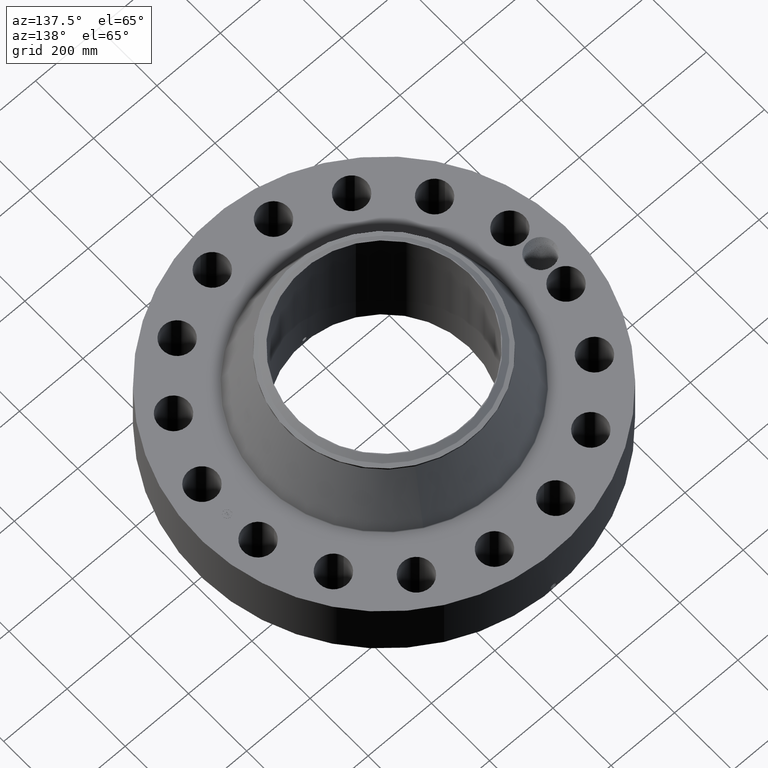
[diagram: clean part render]
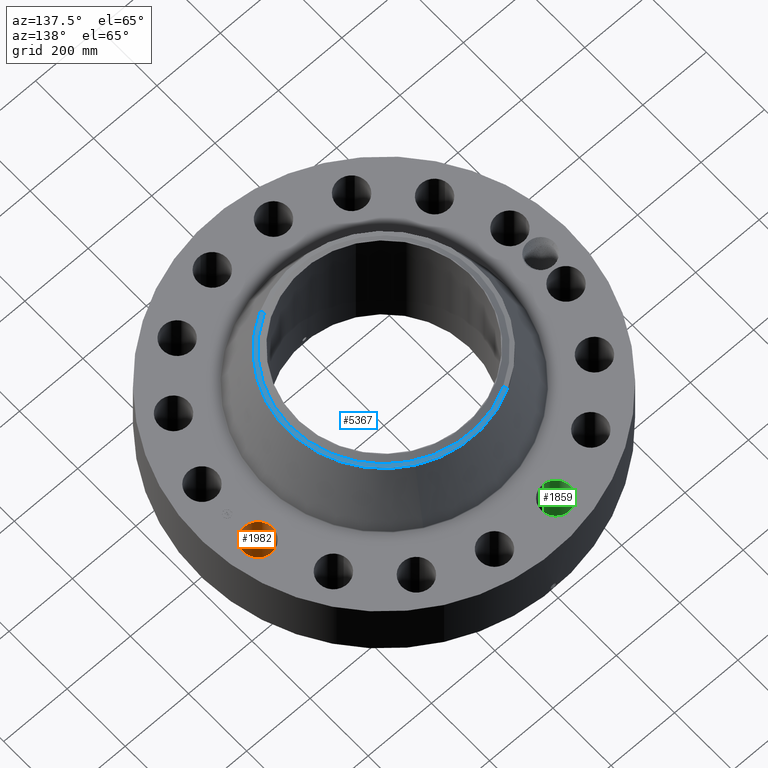
[diagram: same view with three faces highlighted in distinct colors, each labeled with its STEP entity id]
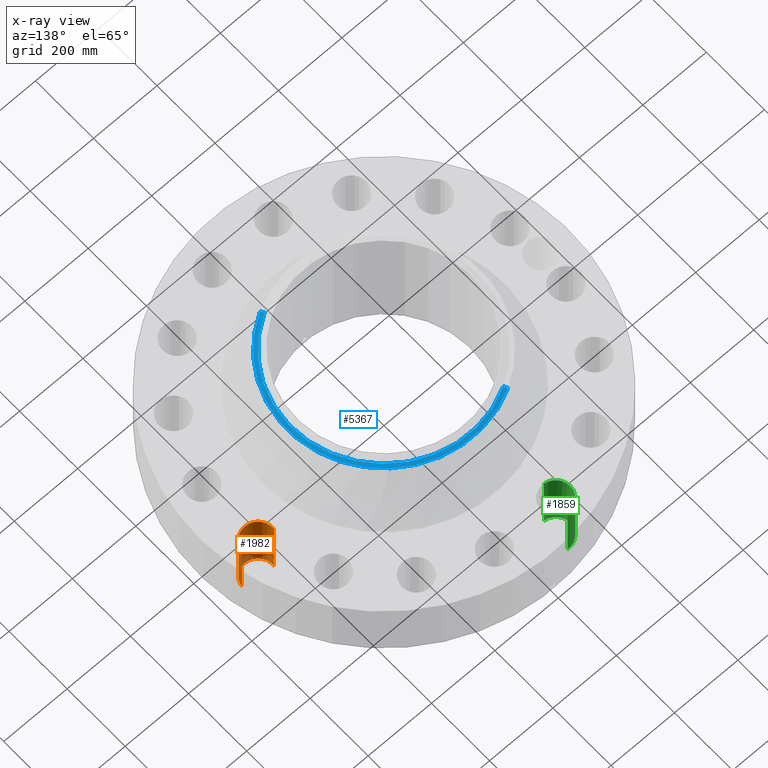
[diagram: x-ray of the same camera — body ghosted, the three highlighted faces saturated]
A machine part, auxiliary view with three faces highlighted in distinct colors.
The next image is the same camera in x-ray (body ghosted, the three faces saturated) — at least one of them is partly hidden behind the body in this view.
Their STEP definitions:

[orange] entity #1982 — the highlighted cylindrical surface (edge-blend (fillet) strip) has radius 45.974 mm, axis along (0, 0, -1).
#539=AXIS2_PLACEMENT_3D('Circle Axis2P3D',#537,#538,$) ;
#1009=AXIS2_PLACEMENT_3D('Circle Axis2P3D',#1007,#1008,$) ;
#1957=AXIS2_PLACEMENT_3D('Cylinder Axis2P3D',#1954,#1955,#1956) ;
#532=CARTESIAN_POINT('Vertex',(17.3257226803,3.99810347461,0.250000000001)) ;
#534=CARTESIAN_POINT('Vertex',(20.9249032556,3.61041908405,0.250000000001)) ;
#537=CARTESIAN_POINT('Axis2P3D Location',(19.1253129679,3.80426127933,0.250000000001)) ;
#1007=CARTESIAN_POINT('Axis2P3D Location',(19.1253129679,3.80426127933,8.25000000003)) ;
#1011=CARTESIAN_POINT('Vertex',(20.9249032556,3.61041908405,8.25000000003)) ;
#1013=CARTESIAN_POINT('Vertex',(17.3257226803,3.99810347461,8.25000000003)) ;
#1954=CARTESIAN_POINT('Axis2P3D Location',(19.1253129679,3.80426127933,8.24606299216)) ;
#1959=CARTESIAN_POINT('Line Origine',(17.3257226803,3.99810347461,4.25000000002)) ;
#1964=CARTESIAN_POINT('Line Origine',(20.9249032556,3.61041908405,4.25000000002)) ;
#538=DIRECTION('Axis2P3D Direction',(0.,0.,-0.0393700787402)) ;
#1008=DIRECTION('Axis2P3D Direction',(0.,0.,-0.0393700787402)) ;
#1955=DIRECTION('Axis2P3D Direction',(0.,0.,-0.0393700787402)) ;
#1956=DIRECTION('Axis2P3D XDirection',(0.0391436526652,-0.00421634391778,0.)) ;
#1960=DIRECTION('Vector Direction',(0.,0.,-0.0393700787402)) ;
#1965=DIRECTION('Vector Direction',(0.,0.,-0.0393700787402)) ;
#1961=VECTOR('Line Direction',#1960,0.0393700787402) ;
#1966=VECTOR('Line Direction',#1965,0.0393700787402) ;
#1977=ORIENTED_EDGE('',*,*,#1968,.F.) ;
#1978=ORIENTED_EDGE('',*,*,#541,.T.) ;
#1979=ORIENTED_EDGE('',*,*,#1963,.T.) ;
#1980=ORIENTED_EDGE('',*,*,#1015,.F.) ;
#1982=ADVANCED_FACE('PartBody',(#1981),#1958,.F.) ;
#540=CIRCLE('generated circle',#539,1.81000000001) ;
#1010=CIRCLE('generated circle',#1009,1.81000000001) ;
#1958=CYLINDRICAL_SURFACE('generated cylinder',#1957,1.81000000001) ;
#541=EDGE_CURVE('',#535,#533,#540,.T.) ;
#1015=EDGE_CURVE('',#1012,#1014,#1010,.T.) ;
#1963=EDGE_CURVE('',#533,#1014,#1962,.F.) ;
#1968=EDGE_CURVE('',#535,#1012,#1967,.F.) ;
#1976=EDGE_LOOP('',(#1977,#1978,#1979,#1980)) ;
#1981=FACE_OUTER_BOUND('',#1976,.T.) ;
#1962=LINE('Line',#1959,#1961) ;
#1967=LINE('Line',#1964,#1966) ;
#533=VERTEX_POINT('',#532) ;
#535=VERTEX_POINT('',#534) ;
#1012=VERTEX_POINT('',#1011) ;
#1014=VERTEX_POINT('',#1013) ;

[blue] entity #5367 — the highlighted conical surface has half-angle 80 deg.
#3911=AXIS2_PLACEMENT_3D('Circle Axis2P3D',#3909,#3910,$) ;
#3938=AXIS2_PLACEMENT_3D('Circle Axis2P3D',#3936,#3937,$) ;
#4738=AXIS2_PLACEMENT_3D('Circle Axis2P3D',#4736,#4737,$) ;
#5348=AXIS2_PLACEMENT_3D('Cone Axis2P3D',#5345,#5346,#5347) ;
#3906=CARTESIAN_POINT('Vertex',(5.75310646327,10.5309907427,15.6533902388)) ;
#3909=CARTESIAN_POINT('Axis2P3D Location',(0.,0.,15.6533902388)) ;
#3913=CARTESIAN_POINT('Vertex',(5.75310646327,-10.5309907427,15.6533902388)) ;
#3933=CARTESIAN_POINT('Vertex',(-5.75310646327,10.5309907427,15.6533902388)) ;
#3936=CARTESIAN_POINT('Axis2P3D Location',(0.,0.,15.6533902388)) ;
#4714=CARTESIAN_POINT('Vertex',(-5.54095769476,10.1426550268,15.7314160193)) ;
#4721=CARTESIAN_POINT('Vertex',(5.54095769476,-10.1426550268,15.7314160193)) ;
#4736=CARTESIAN_POINT('Axis2P3D Location',(0.,0.,15.7314160193)) ;
#5345=CARTESIAN_POINT('Axis2P3D Location',(0.,0.,15.7314160193)) ;
#5350=CARTESIAN_POINT('Line Origine',(-5.64703207902,10.3368228848,15.6924031291)) ;
#5355=CARTESIAN_POINT('Line Origine',(5.64703207902,-10.3368228848,15.6924031291)) ;
#3910=DIRECTION('Axis2P3D Direction',(0.,0.,-0.0393700787402)) ;
#3937=DIRECTION('Axis2P3D Direction',(0.,0.,-0.0393700787402)) ;
#4737=DIRECTION('Axis2P3D Direction',(0.,0.,0.0393700787402)) ;
#5346=DIRECTION('Axis2P3D Direction',(-0.,-0.,-0.0393700787402)) ;
#5347=DIRECTION('Axis2P3D XDirection',(0.0188750212049,-0.0345504945626,0.)) ;
#5351=DIRECTION('Vector Direction',(-0.0185882672208,0.0340255949157,-0.00683654242783)) ;
#5356=DIRECTION('Vector Direction',(0.0185882672208,-0.0340255949157,-0.00683654242783)) ;
#5352=VECTOR('Line Direction',#5351,0.0393700787402) ;
#5357=VECTOR('Line Direction',#5356,0.0393700787402) ;
#5361=ORIENTED_EDGE('',*,*,#5354,.F.) ;
#5362=ORIENTED_EDGE('',*,*,#4740,.F.) ;
#5363=ORIENTED_EDGE('',*,*,#5359,.T.) ;
#5364=ORIENTED_EDGE('',*,*,#3915,.T.) ;
#5365=ORIENTED_EDGE('',*,*,#3940,.F.) ;
#5367=ADVANCED_FACE('PartBody',(#5366),#5349,.T.) ;
#3912=CIRCLE('generated circle',#3911,12.) ;
#3939=CIRCLE('generated circle',#3938,12.) ;
#4739=CIRCLE('generated circle',#4738,11.55749381) ;
#5349=CONICAL_SURFACE('Cone',#5348,11.55749381,1.3962634016) ;
#3915=EDGE_CURVE('',#3914,#3907,#3912,.F.) ;
#3940=EDGE_CURVE('',#3934,#3907,#3939,.T.) ;
#4740=EDGE_CURVE('',#4722,#4715,#4739,.T.) ;
#5354=EDGE_CURVE('',#4715,#3934,#5353,.T.) ;
#5359=EDGE_CURVE('',#4722,#3914,#5358,.T.) ;
#5360=EDGE_LOOP('',(#5361,#5362,#5363,#5364,#5365)) ;
#5366=FACE_OUTER_BOUND('',#5360,.T.) ;
#5353=LINE('Line',#5350,#5352) ;
#5358=LINE('Line',#5355,#5357) ;
#3907=VERTEX_POINT('',#3906) ;
#3914=VERTEX_POINT('',#3913) ;
#3934=VERTEX_POINT('',#3933) ;
#4715=VERTEX_POINT('',#4714) ;
#4722=VERTEX_POINT('',#4721) ;

[green] entity #1859 — the highlighted cylindrical surface (edge-blend (fillet) strip) has radius 45.974 mm, axis along (0, 0, -1).
#458=AXIS2_PLACEMENT_3D('Circle Axis2P3D',#456,#457,$) ;
#946=AXIS2_PLACEMENT_3D('Circle Axis2P3D',#944,#945,$) ;
#1841=AXIS2_PLACEMENT_3D('Cylinder Axis2P3D',#1838,#1839,#1840) ;
#456=CARTESIAN_POINT('Axis2P3D Location',(-3.80426127933,19.1253129679,0.250000000001)) ;
#460=CARTESIAN_POINT('Vertex',(-3.99810347461,17.3257226803,0.250000000001)) ;
#462=CARTESIAN_POINT('Vertex',(-3.61041908405,20.9249032556,0.250000000001)) ;
#939=CARTESIAN_POINT('Vertex',(-3.61041908405,20.9249032556,8.25000000003)) ;
#941=CARTESIAN_POINT('Vertex',(-3.99810347461,17.3257226803,8.25000000003)) ;
#944=CARTESIAN_POINT('Axis2P3D Location',(-3.80426127933,19.1253129679,8.25000000003)) ;
#1838=CARTESIAN_POINT('Axis2P3D Location',(-3.80426127933,19.1253129679,8.24606299216)) ;
#1843=CARTESIAN_POINT('Line Origine',(-3.99810347461,17.3257226803,4.25000000002)) ;
#1848=CARTESIAN_POINT('Line Origine',(-3.61041908405,20.9249032556,4.25000000002)) ;
#457=DIRECTION('Axis2P3D Direction',(0.,0.,-0.0393700787402)) ;
#945=DIRECTION('Axis2P3D Direction',(0.,0.,-0.0393700787402)) ;
#1839=DIRECTION('Axis2P3D Direction',(0.,0.,-0.0393700787402)) ;
#1840=DIRECTION('Axis2P3D XDirection',(0.00421634391778,0.0391436526652,0.)) ;
#1844=DIRECTION('Vector Direction',(0.,0.,-0.0393700787402)) ;
#1849=DIRECTION('Vector Direction',(0.,0.,-0.0393700787402)) ;
#1845=VECTOR('Line Direction',#1844,0.0393700787402) ;
#1850=VECTOR('Line Direction',#1849,0.0393700787402) ;
#1854=ORIENTED_EDGE('',*,*,#1847,.F.) ;
#1855=ORIENTED_EDGE('',*,*,#464,.T.) ;
#1856=ORIENTED_EDGE('',*,*,#1852,.T.) ;
#1857=ORIENTED_EDGE('',*,*,#948,.F.) ;
#1859=ADVANCED_FACE('PartBody',(#1858),#1842,.F.) ;
#459=CIRCLE('generated circle',#458,1.81000000001) ;
#947=CIRCLE('generated circle',#946,1.81000000001) ;
#1842=CYLINDRICAL_SURFACE('generated cylinder',#1841,1.81000000001) ;
#464=EDGE_CURVE('',#461,#463,#459,.T.) ;
#948=EDGE_CURVE('',#942,#940,#947,.T.) ;
#1847=EDGE_CURVE('',#461,#942,#1846,.F.) ;
#1852=EDGE_CURVE('',#463,#940,#1851,.F.) ;
#1853=EDGE_LOOP('',(#1854,#1855,#1856,#1857)) ;
#1858=FACE_OUTER_BOUND('',#1853,.T.) ;
#1846=LINE('Line',#1843,#1845) ;
#1851=LINE('Line',#1848,#1850) ;
#461=VERTEX_POINT('',#460) ;
#463=VERTEX_POINT('',#462) ;
#940=VERTEX_POINT('',#939) ;
#942=VERTEX_POINT('',#941) ;